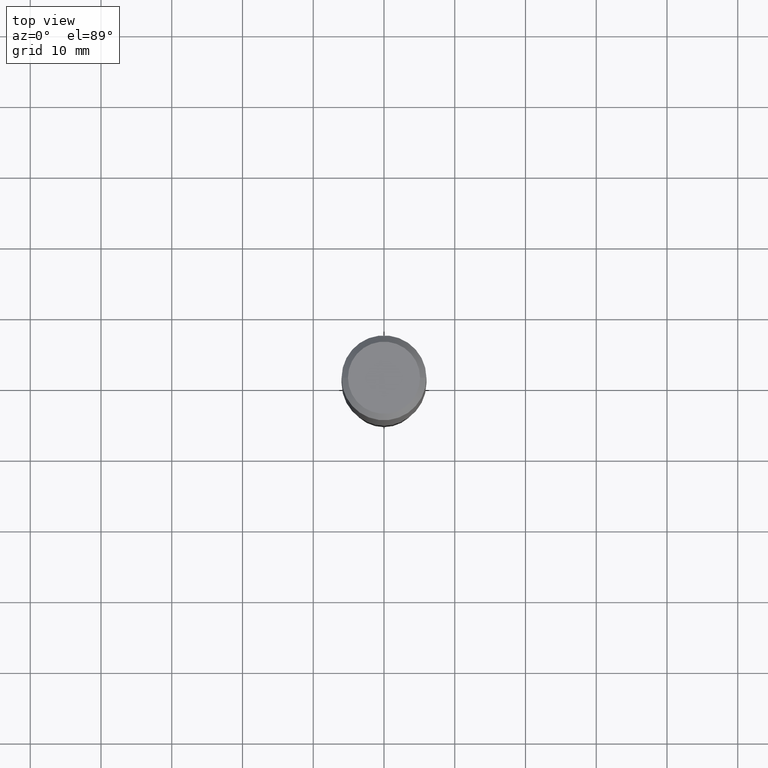
[diagram: clean part render]
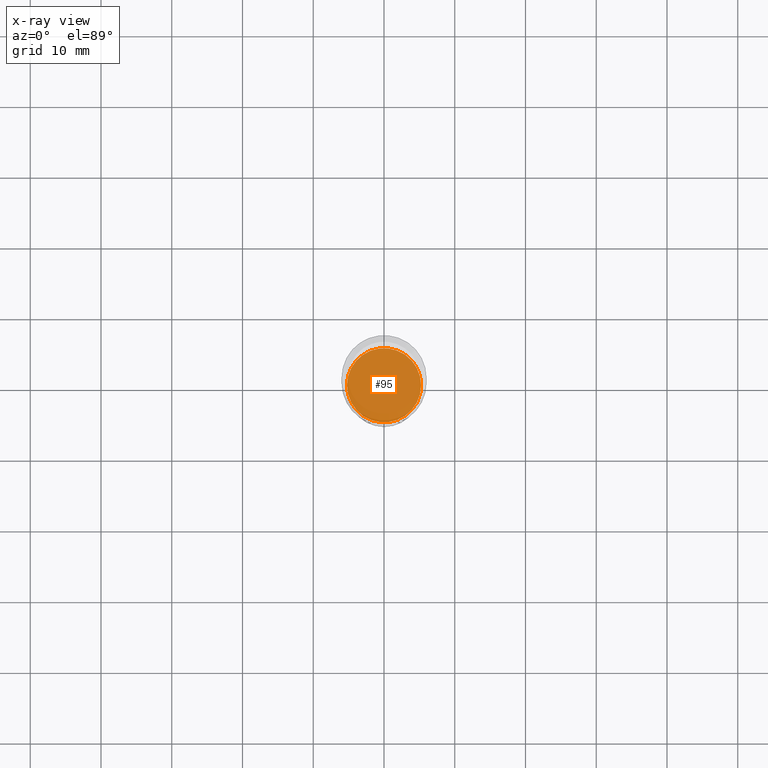
[diagram: x-ray — body ghosted, one internal face saturated and labeled with its STEP entity id]
A machine part, top view, then the same camera in x-ray: the body is ghosted and one INTERNAL B-rep face — a face not visible from any outside direction — is saturated and labeled: STEP entity #95.
In plain terms, the highlighted planar face has unit normal (-0, 0, 1).
Its self-contained STEP definition (entity closure, byte-faithful):
#5 = EDGE_LOOP ( 'NONE', ( #273, #109 ) ) ;
#6 = DIRECTION ( 'NONE',  ( -2.445468806185136597E-29, 3.491481338843145583E-15, 1.000000000000000000 ) ) ;
#15 = AXIS2_PLACEMENT_3D ( 'NONE', #486, #190, #152 ) ;
#95 = ADVANCED_FACE ( 'NONE', ( #274 ), #156, .F. ) ;
#109 = ORIENTED_EDGE ( 'NONE', *, *, #477, .F. ) ;
#114 = DIRECTION ( 'NONE',  ( 1.000000000000000000, -6.982962677686268288E-15, 0.000000000000000000 ) ) ;
#121 = VERTEX_POINT ( 'NONE', #465 ) ;
#152 = DIRECTION ( 'NONE',  ( 1.000000000000000000, -6.982962677686265922E-15, 4.876176775795935793E-29 ) ) ;
#153 = DIRECTION ( 'NONE',  ( 1.000000000000000000, -6.982962677686268288E-15, 0.000000000000000000 ) ) ;
#156 = PLANE ( 'NONE',  #15 ) ;
#162 = AXIS2_PLACEMENT_3D ( 'NONE', #389, #6, #153 ) ;
#190 = DIRECTION ( 'NONE',  ( -2.438088387897960049E-29, 3.491481338843145188E-15, 1.000000000000000000 ) ) ;
#192 = DIRECTION ( 'NONE',  ( -2.445468806185136597E-29, 3.491481338843145583E-15, 1.000000000000000000 ) ) ;
#226 = VERTEX_POINT ( 'NONE', #286 ) ;
#268 = CARTESIAN_POINT ( 'NONE',  ( 5.969144809017299038E-29, -8.522356799982232966E-15, -2.440900000000000070 ) ) ;
#271 = CIRCLE ( 'NONE', #322, 0.2062000000000000222 ) ;
#273 = ORIENTED_EDGE ( 'NONE', *, *, #439, .F. ) ;
#274 = FACE_OUTER_BOUND ( 'NONE', #5, .T. ) ;
#286 = CARTESIAN_POINT ( 'NONE',  ( -0.2062000000000000222, -7.054568451670796404E-15, -2.440900000000000070 ) ) ;
#322 = AXIS2_PLACEMENT_3D ( 'NONE', #268, #192, #114 ) ;
#389 = CARTESIAN_POINT ( 'NONE',  ( 5.969144809017299038E-29, -8.522356799982232966E-15, -2.440900000000000070 ) ) ;
#439 = EDGE_CURVE ( 'NONE', #121, #226, #485, .T. ) ;
#465 = CARTESIAN_POINT ( 'NONE',  ( 0.2062000000000000222, -9.962243704121142752E-15, -2.440900000000000070 ) ) ;
#477 = EDGE_CURVE ( 'NONE', #226, #121, #271, .T. ) ;
#485 = CIRCLE ( 'NONE', #162, 0.2062000000000000222 ) ;
#486 = CARTESIAN_POINT ( 'NONE',  ( 5.969144809017299038E-29, -8.522356799982232966E-15, -2.440900000000000070 ) ) ;